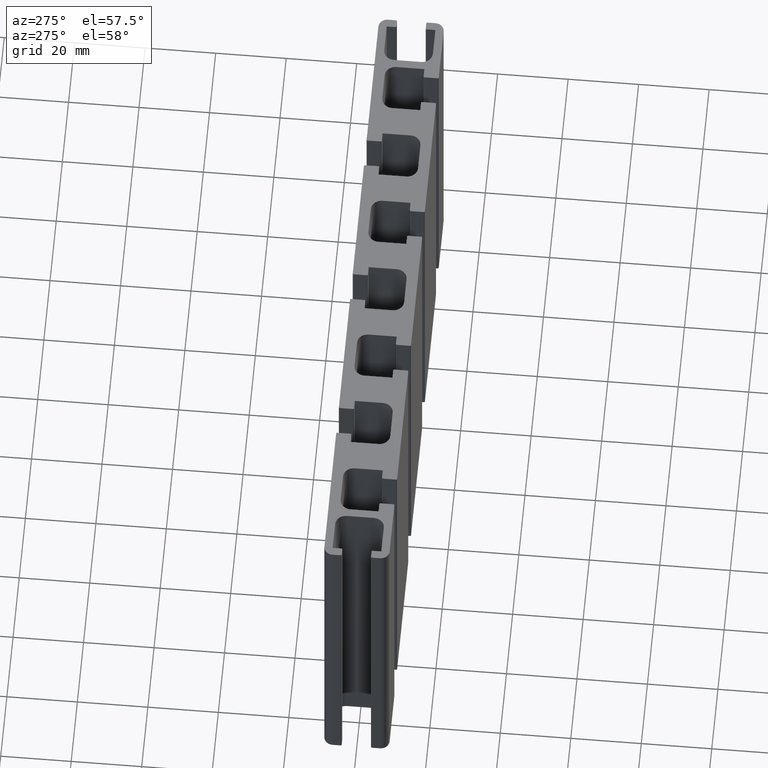
[diagram: clean part render]
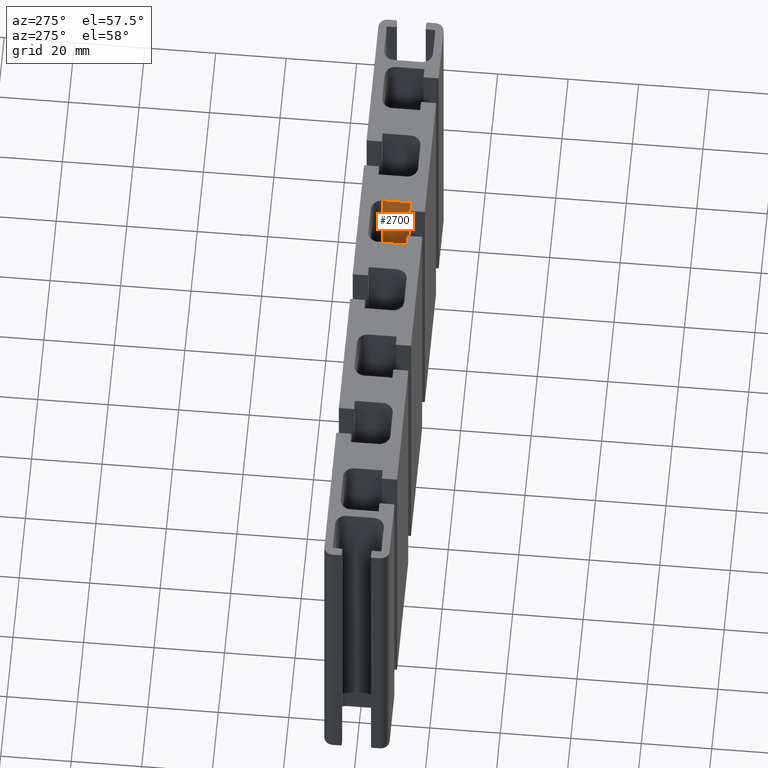
[diagram: same view with one face highlighted and labeled with its STEP entity id]
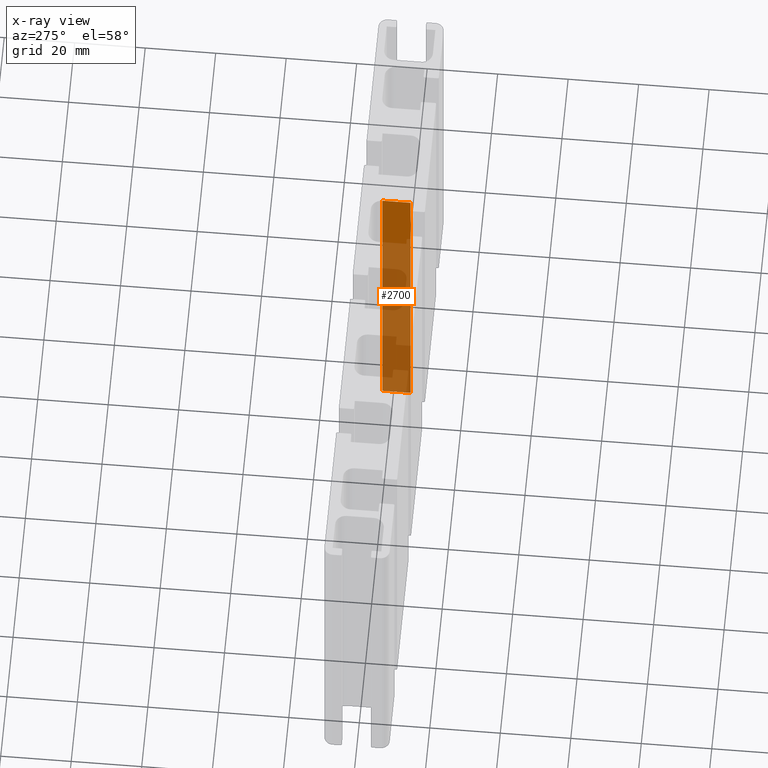
[diagram: x-ray of the same camera — body ghosted, the highlighted face saturated]
A machine part, auxiliary view. The second image highlights one B-rep face of the part: STEP entity #2700.
The next image is the same camera in x-ray: the body ghosted, the highlighted face saturated — about 79% of this face is hidden behind the body in this view.
In plain terms, the highlighted planar face has unit normal (1, -0, 0).
Its self-contained STEP definition (entity closure, byte-faithful):
#304=FACE_OUTER_BOUND('',#440,.T.);
#440=EDGE_LOOP('',(#2163,#2164,#2165,#2166));
#708=LINE('',#4486,#994);
#710=LINE('',#4490,#996);
#711=LINE('',#4492,#997);
#712=LINE('',#4493,#998);
#994=VECTOR('',#3666,100.);
#996=VECTOR('',#3670,7.99999999999994);
#997=VECTOR('',#3671,100.);
#998=VECTOR('',#3672,7.99999999999994);
#1281=VERTEX_POINT('',#4483);
#1282=VERTEX_POINT('',#4485);
#1283=VERTEX_POINT('',#4489);
#1284=VERTEX_POINT('',#4491);
#1654=EDGE_CURVE('',#1282,#1281,#708,.T.);
#1656=EDGE_CURVE('',#1283,#1281,#710,.T.);
#1657=EDGE_CURVE('',#1284,#1283,#711,.T.);
#1658=EDGE_CURVE('',#1282,#1284,#712,.T.);
#2163=ORIENTED_EDGE('',*,*,#1656,.F.);
#2164=ORIENTED_EDGE('',*,*,#1657,.F.);
#2165=ORIENTED_EDGE('',*,*,#1658,.F.);
#2166=ORIENTED_EDGE('',*,*,#1654,.T.);
#2569=PLANE('',#2944);
#2700=ADVANCED_FACE('',(#304),#2569,.F.);
#2944=AXIS2_PLACEMENT_3D('',#4488,#3668,#3669);
#3666=DIRECTION('',(0.,0.,1.));
#3668=DIRECTION('center_axis',(1.,-6.66133814775099E-15,0.));
#3669=DIRECTION('ref_axis',(6.75015598972095E-15,1.,0.));
#3670=DIRECTION('',(-6.66133814775099E-15,-1.,0.));
#3671=DIRECTION('',(0.,0.,1.));
#3672=DIRECTION('',(6.66133814775099E-15,1.,0.));
#4483=CARTESIAN_POINT('',(29.3962803533563,-4.95000000000001,100.));
#4485=CARTESIAN_POINT('',(29.3962803533563,-4.95000000000001,0.));
#4486=CARTESIAN_POINT('',(29.3962803533563,-4.95000000000001,0.));
#4488=CARTESIAN_POINT('Origin',(29.3962803533563,-4.95000000000001,0.));
#4489=CARTESIAN_POINT('',(29.3962803533563,3.04999999999993,100.));
#4490=CARTESIAN_POINT('',(29.3962803533563,-2.4750000000001,100.));
#4491=CARTESIAN_POINT('',(29.3962803533563,3.04999999999993,0.));
#4492=CARTESIAN_POINT('',(29.3962803533563,3.04999999999993,0.));
#4493=CARTESIAN_POINT('',(29.3962803533563,-2.4750000000001,0.));